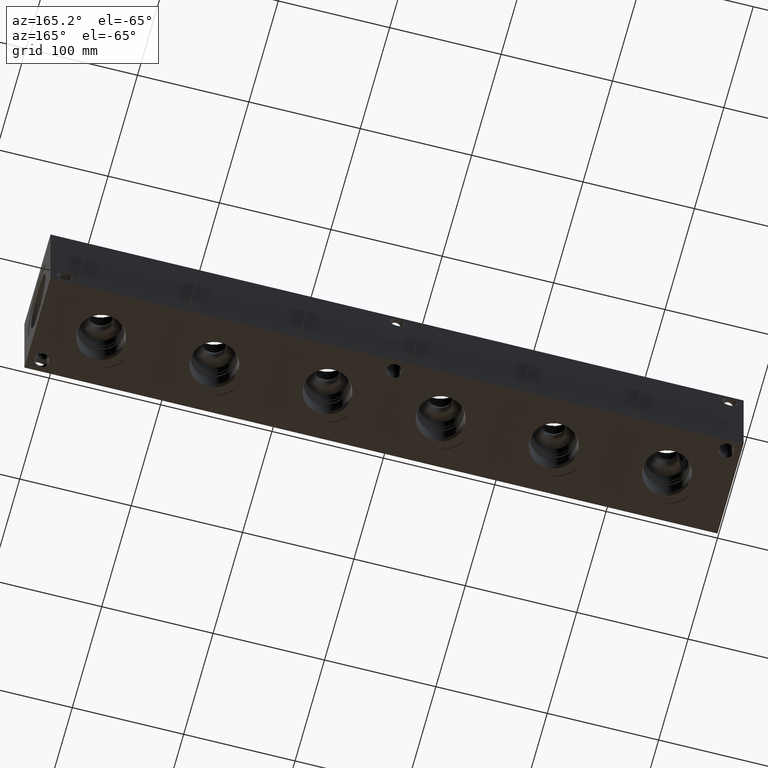
[diagram: clean part render]
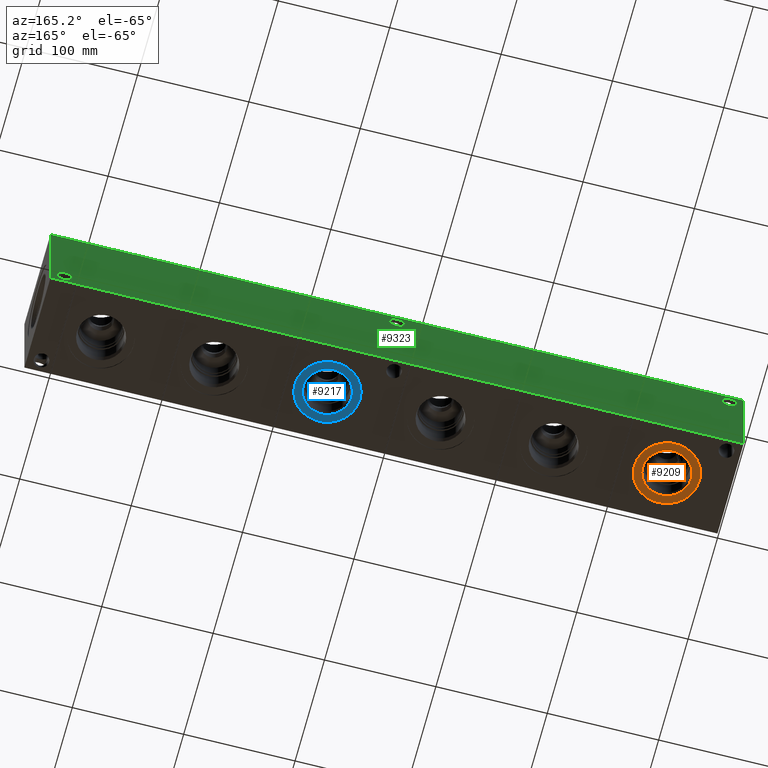
[diagram: same view with three faces highlighted in distinct colors, each labeled with its STEP entity id]
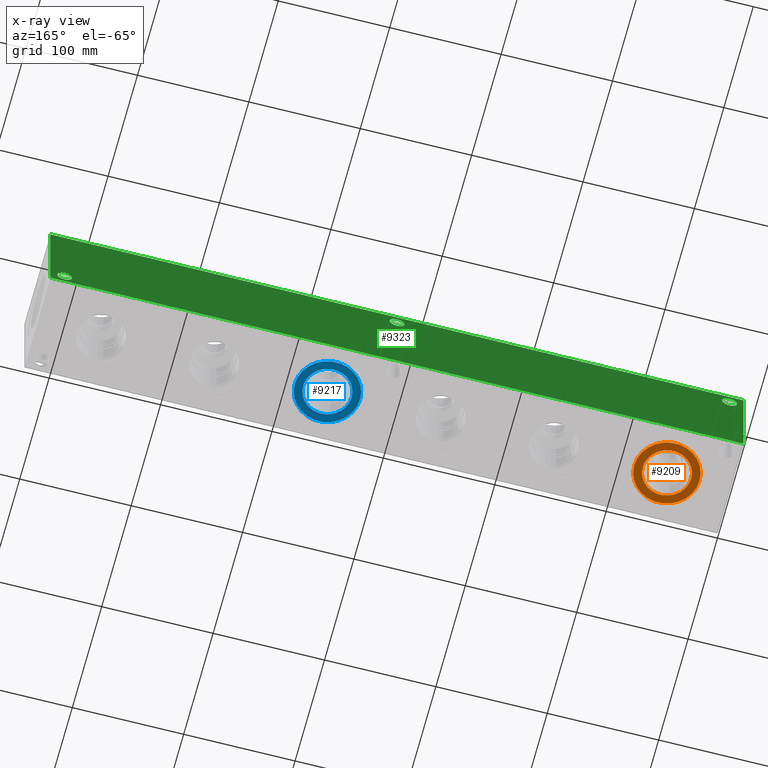
[diagram: x-ray of the same camera — body ghosted, the three highlighted faces saturated]
A machine part, auxiliary view with three faces highlighted in distinct colors.
The next image is the same camera in x-ray (body ghosted, the three faces saturated) — at least one of them is partly hidden behind the body in this view.
Their STEP definitions:

[orange] entity #9209 — the highlighted planar face has unit normal (0, 0, -1).
#270=CIRCLE('',#9707,29.2862);
#271=CIRCLE('',#9708,29.2862);
#272=CIRCLE('',#9709,21.7551);
#478=FACE_BOUND('',#1770,.T.);
#1236=FACE_OUTER_BOUND('',#1769,.T.);
#1769=EDGE_LOOP('',(#7692,#7693));
#1770=EDGE_LOOP('',(#7694));
#4200=VERTEX_POINT('',#15863);
#4201=VERTEX_POINT('',#15864);
#4202=VERTEX_POINT('',#15867);
#5405=EDGE_CURVE('',#4200,#4201,#270,.T.);
#5406=EDGE_CURVE('',#4201,#4200,#271,.T.);
#5407=EDGE_CURVE('',#4202,#4202,#272,.T.);
#7692=ORIENTED_EDGE('',*,*,#5405,.T.);
#7693=ORIENTED_EDGE('',*,*,#5406,.T.);
#7694=ORIENTED_EDGE('',*,*,#5407,.F.);
#8508=PLANE('',#9706);
#9209=ADVANCED_FACE('',(#1236,#478),#8508,.T.);
#9706=AXIS2_PLACEMENT_3D('',#15862,#11417,#11418);
#9707=AXIS2_PLACEMENT_3D('',#15865,#11419,#11420);
#9708=AXIS2_PLACEMENT_3D('',#15866,#11421,#11422);
#9709=AXIS2_PLACEMENT_3D('',#15868,#11423,#11424);
#11417=DIRECTION('center_axis',(0.,0.,-1.));
#11418=DIRECTION('ref_axis',(1.,0.,0.));
#11419=DIRECTION('center_axis',(0.,0.,-1.));
#11420=DIRECTION('ref_axis',(1.,0.,0.));
#11421=DIRECTION('center_axis',(0.,0.,-1.));
#11422=DIRECTION('ref_axis',(1.,0.,0.));
#11423=DIRECTION('center_axis',(0.,0.,-1.));
#11424=DIRECTION('ref_axis',(1.,0.,0.));
#15862=CARTESIAN_POINT('Origin',(57.15,44.45,0.7874));
#15863=CARTESIAN_POINT('',(86.4362,44.45,0.7874));
#15864=CARTESIAN_POINT('',(27.8638,44.45,0.7874));
#15865=CARTESIAN_POINT('Origin',(57.15,44.45,0.7874));
#15866=CARTESIAN_POINT('Origin',(57.15,44.45,0.7874));
#15867=CARTESIAN_POINT('',(35.3949,44.45,0.7874));
#15868=CARTESIAN_POINT('Origin',(57.15,44.45,0.7874));

[blue] entity #9217 — the highlighted planar face has unit normal (0, 0, -1).
#282=CIRCLE('',#9727,29.2862);
#283=CIRCLE('',#9728,29.2862);
#284=CIRCLE('',#9729,21.7551);
#480=FACE_BOUND('',#1780,.T.);
#1244=FACE_OUTER_BOUND('',#1779,.T.);
#1779=EDGE_LOOP('',(#7728,#7729));
#1780=EDGE_LOOP('',(#7730));
#4212=VERTEX_POINT('',#15901);
#4213=VERTEX_POINT('',#15902);
#4214=VERTEX_POINT('',#15905);
#5423=EDGE_CURVE('',#4212,#4213,#282,.T.);
#5424=EDGE_CURVE('',#4213,#4212,#283,.T.);
#5425=EDGE_CURVE('',#4214,#4214,#284,.T.);
#7728=ORIENTED_EDGE('',*,*,#5423,.T.);
#7729=ORIENTED_EDGE('',*,*,#5424,.T.);
#7730=ORIENTED_EDGE('',*,*,#5425,.F.);
#8510=PLANE('',#9726);
#9217=ADVANCED_FACE('',(#1244,#480),#8510,.T.);
#9726=AXIS2_PLACEMENT_3D('',#15900,#11463,#11464);
#9727=AXIS2_PLACEMENT_3D('',#15903,#11465,#11466);
#9728=AXIS2_PLACEMENT_3D('',#15904,#11467,#11468);
#9729=AXIS2_PLACEMENT_3D('',#15906,#11469,#11470);
#11463=DIRECTION('center_axis',(0.,0.,-1.));
#11464=DIRECTION('ref_axis',(1.,0.,0.));
#11465=DIRECTION('center_axis',(0.,0.,-1.));
#11466=DIRECTION('ref_axis',(1.,0.,0.));
#11467=DIRECTION('center_axis',(0.,0.,-1.));
#11468=DIRECTION('ref_axis',(1.,0.,0.));
#11469=DIRECTION('center_axis',(0.,0.,-1.));
#11470=DIRECTION('ref_axis',(1.,0.,0.));
#15900=CARTESIAN_POINT('Origin',(361.95,44.45,0.7874));
#15901=CARTESIAN_POINT('',(391.2362,44.45,0.7874));
#15902=CARTESIAN_POINT('',(332.6638,44.45,0.7874));
#15903=CARTESIAN_POINT('Origin',(361.95,44.45,0.7874));
#15904=CARTESIAN_POINT('Origin',(361.95,44.45,0.7874));
#15905=CARTESIAN_POINT('',(340.1949,44.45,0.7874));
#15906=CARTESIAN_POINT('Origin',(361.95,44.45,0.7874));

[green] entity #9323 — the highlighted planar face has unit normal (0, 1, 0).
#295=CIRCLE('',#9752,6.7437);
#298=CIRCLE('',#9761,6.7437);
#301=CIRCLE('',#9770,6.7437);
#499=FACE_BOUND('',#1905,.T.);
#500=FACE_BOUND('',#1906,.T.);
#501=FACE_BOUND('',#1907,.T.);
#1350=FACE_OUTER_BOUND('',#1904,.T.);
#1904=EDGE_LOOP('',(#8250,#8251,#8252,#8253));
#1905=EDGE_LOOP('',(#8254));
#1906=EDGE_LOOP('',(#8255));
#1907=EDGE_LOOP('',(#8256));
#2191=LINE('',#14381,#2977);
#2705=LINE('',#16408,#3491);
#2706=LINE('',#16411,#3492);
#2707=LINE('',#16412,#3493);
#2977=VECTOR('',#10397,10.);
#3491=VECTOR('',#12085,10.);
#3492=VECTOR('',#12088,10.);
#3493=VECTOR('',#12089,10.);
#3811=VERTEX_POINT('',#14378);
#3812=VERTEX_POINT('',#14380);
#4226=VERTEX_POINT('',#15945);
#4231=VERTEX_POINT('',#15961);
#4236=VERTEX_POINT('',#15977);
#4364=VERTEX_POINT('',#16404);
#4366=VERTEX_POINT('',#16410);
#4838=EDGE_CURVE('',#3811,#3812,#2191,.T.);
#5446=EDGE_CURVE('',#4226,#4226,#295,.T.);
#5455=EDGE_CURVE('',#4231,#4231,#298,.T.);
#5464=EDGE_CURVE('',#4236,#4236,#301,.T.);
#5671=EDGE_CURVE('',#4364,#3812,#2705,.T.);
#5672=EDGE_CURVE('',#4366,#4364,#2706,.T.);
#5673=EDGE_CURVE('',#4366,#3811,#2707,.T.);
#8250=ORIENTED_EDGE('',*,*,#5672,.T.);
#8251=ORIENTED_EDGE('',*,*,#5671,.T.);
#8252=ORIENTED_EDGE('',*,*,#4838,.F.);
#8253=ORIENTED_EDGE('',*,*,#5673,.F.);
#8254=ORIENTED_EDGE('',*,*,#5446,.T.);
#8255=ORIENTED_EDGE('',*,*,#5455,.T.);
#8256=ORIENTED_EDGE('',*,*,#5464,.T.);
#8529=PLANE('',#9994);
#9323=ADVANCED_FACE('',(#1350,#499,#500,#501),#8529,.T.);
#9752=AXIS2_PLACEMENT_3D('',#15947,#11521,#11522);
#9761=AXIS2_PLACEMENT_3D('',#15963,#11541,#11542);
#9770=AXIS2_PLACEMENT_3D('',#15979,#11561,#11562);
#9994=AXIS2_PLACEMENT_3D('',#16409,#12086,#12087);
#10397=DIRECTION('',(-1.,0.,0.));
#11521=DIRECTION('center_axis',(0.,-1.,0.));
#11522=DIRECTION('ref_axis',(1.,0.,0.));
#11541=DIRECTION('center_axis',(0.,-1.,0.));
#11542=DIRECTION('ref_axis',(1.,0.,0.));
#11561=DIRECTION('center_axis',(0.,-1.,0.));
#11562=DIRECTION('ref_axis',(1.,0.,0.));
#12085=DIRECTION('',(0.,0.,1.));
#12086=DIRECTION('center_axis',(0.,1.,0.));
#12087=DIRECTION('ref_axis',(-1.,0.,0.));
#12088=DIRECTION('',(-1.,0.,0.));
#12089=DIRECTION('',(0.,0.,1.));
#14378=CARTESIAN_POINT('',(622.3,88.9,88.9));
#14380=CARTESIAN_POINT('',(0.,88.9,88.9));
#14381=CARTESIAN_POINT('',(622.3,88.9,88.9));
#15945=CARTESIAN_POINT('',(304.4063,88.9,78.5876));
#15947=CARTESIAN_POINT('Origin',(311.15,88.9,78.5876));
#15961=CARTESIAN_POINT('',(5.9563,88.9,78.5876));
#15963=CARTESIAN_POINT('Origin',(12.7,88.9,78.5876));
#15977=CARTESIAN_POINT('',(602.8563,88.9,10.3124));
#15979=CARTESIAN_POINT('Origin',(609.6,88.9,10.3124));
#16404=CARTESIAN_POINT('',(0.,88.9,0.));
#16408=CARTESIAN_POINT('',(0.,88.9,0.));
#16409=CARTESIAN_POINT('Origin',(622.3,88.9,0.));
#16410=CARTESIAN_POINT('',(622.3,88.9,0.));
#16411=CARTESIAN_POINT('',(622.3,88.9,0.));
#16412=CARTESIAN_POINT('',(622.3,88.9,0.));